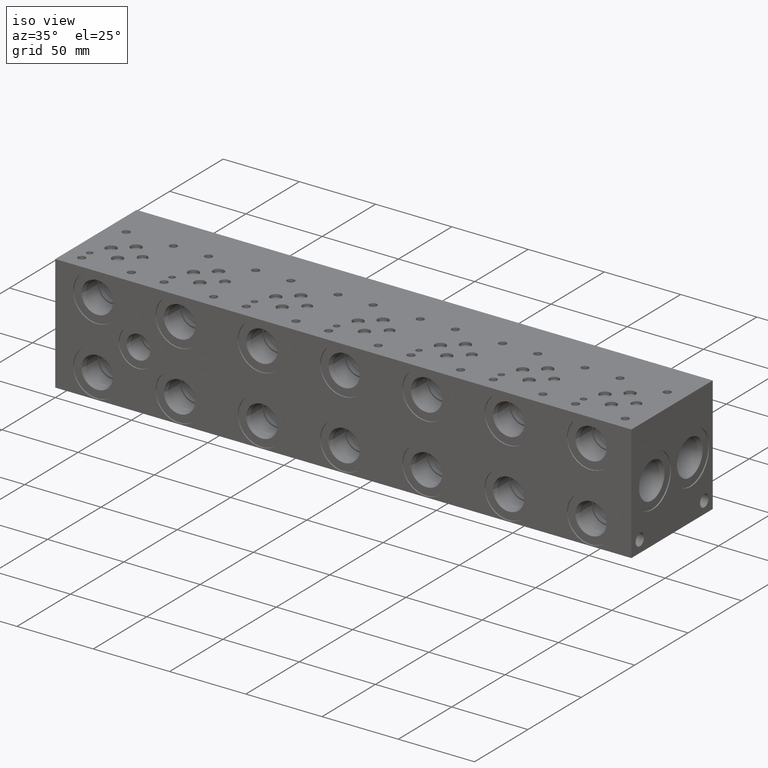
[diagram: clean part render]
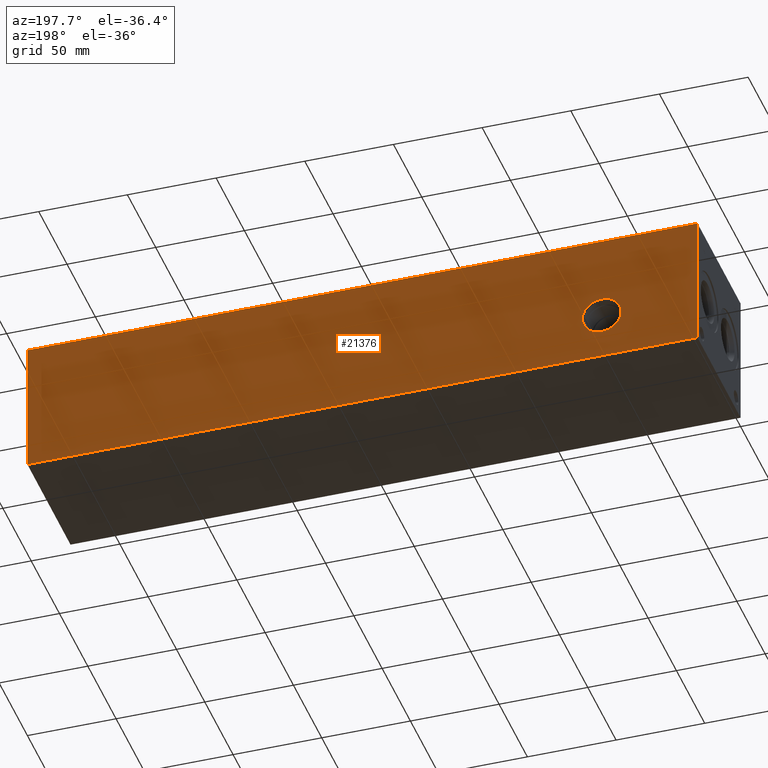
[diagram: tour spotlight — one face highlighted and labeled with its STEP entity id]
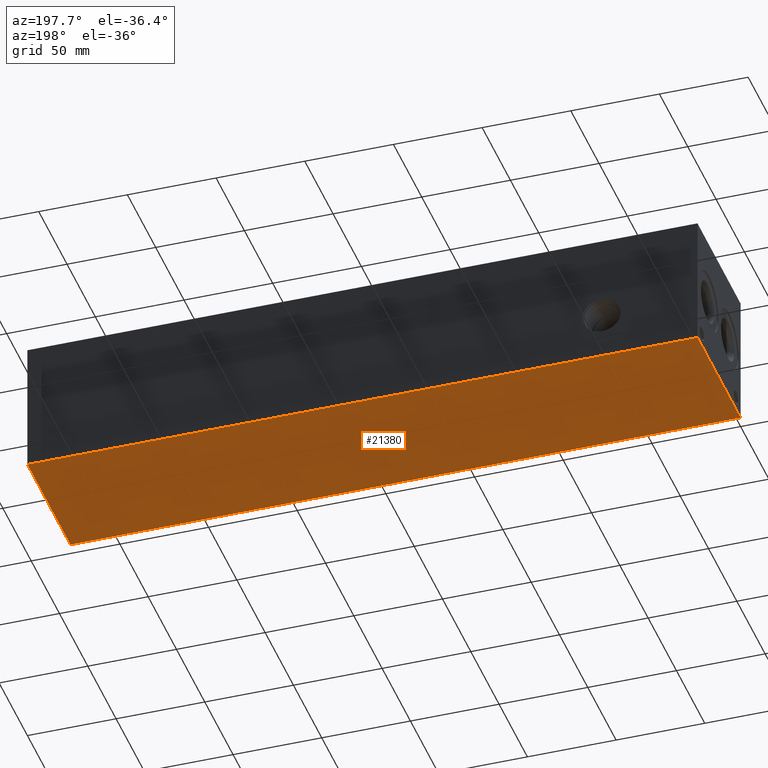
[diagram: tour spotlight — one face highlighted and labeled with its STEP entity id]
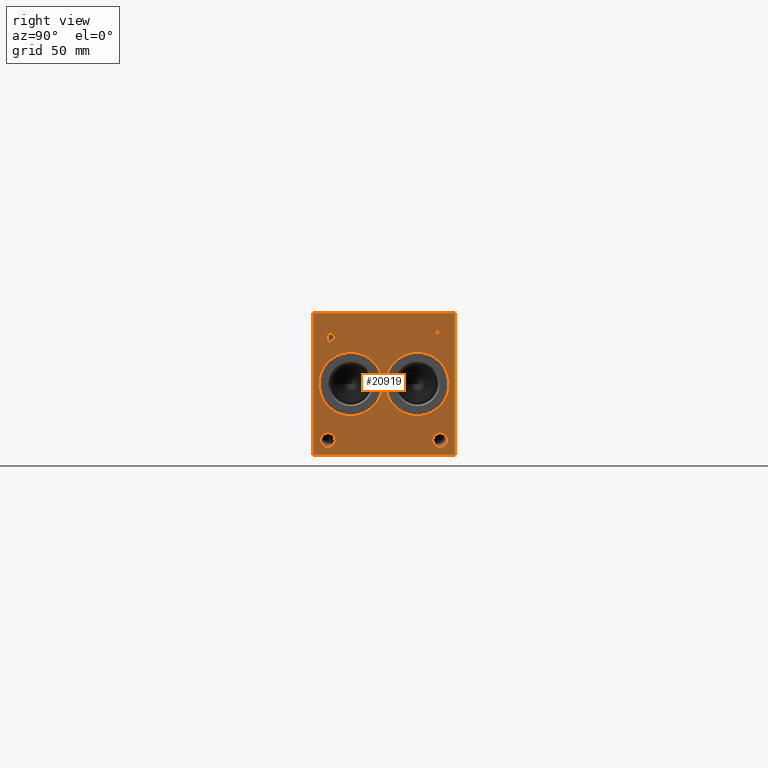
[diagram: tour spotlight — one face highlighted and labeled with its STEP entity id]
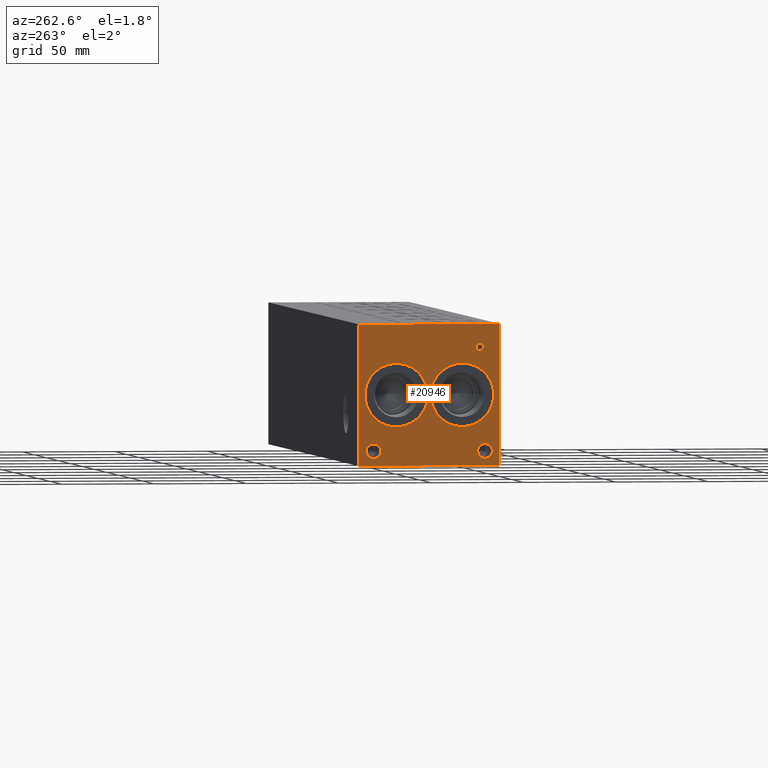
[diagram: tour spotlight — one face highlighted and labeled with its STEP entity id]
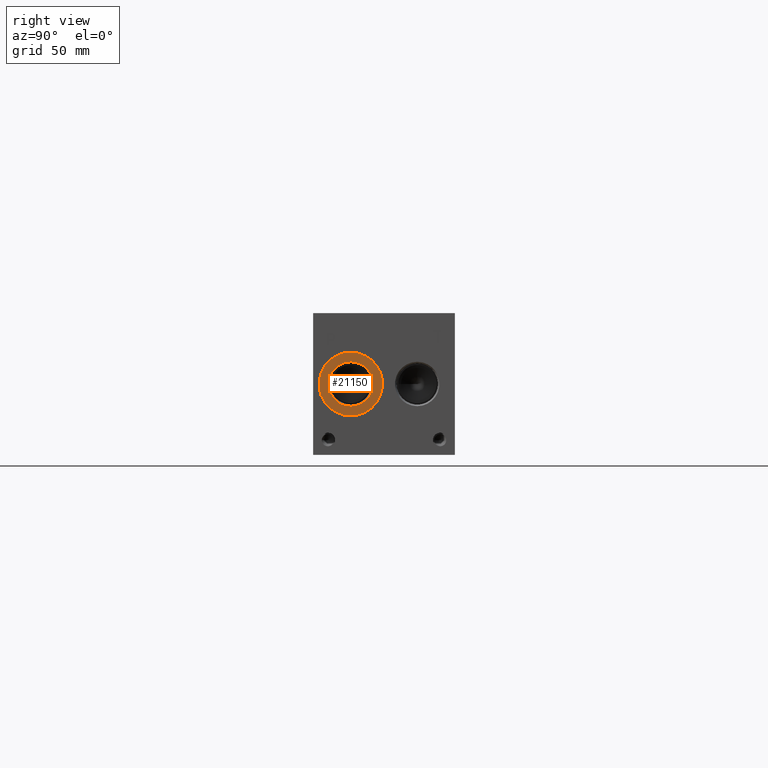
[diagram: tour spotlight — one face highlighted and labeled with its STEP entity id]
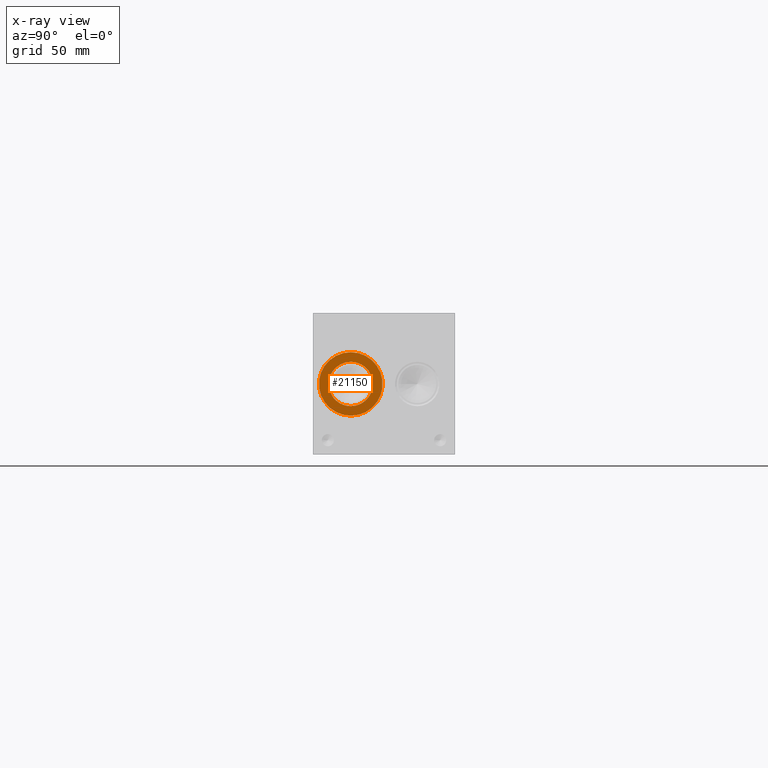
[diagram: x-ray of the same camera — body ghosted, this tour face saturated]
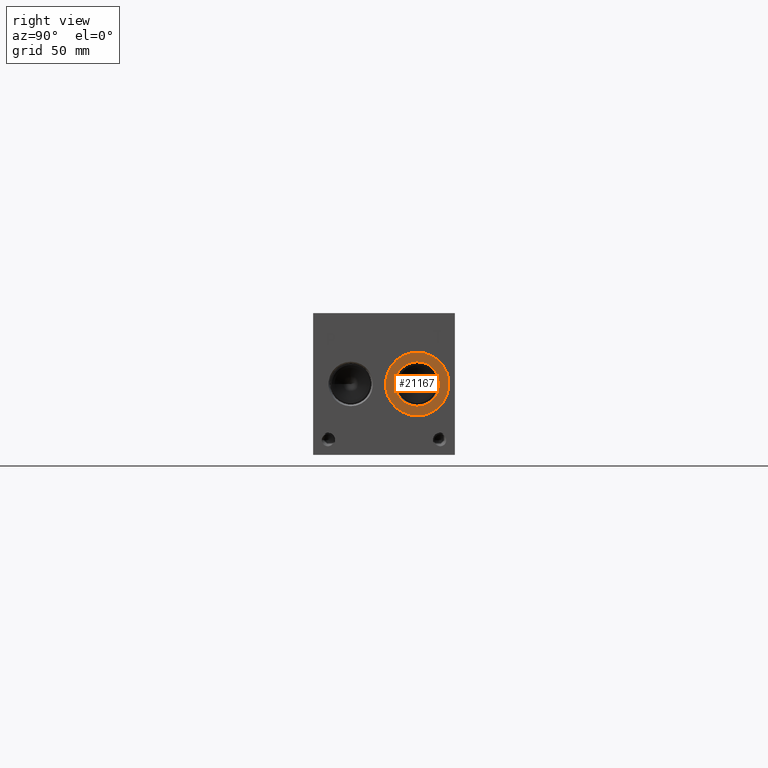
[diagram: tour spotlight — one face highlighted and labeled with its STEP entity id]
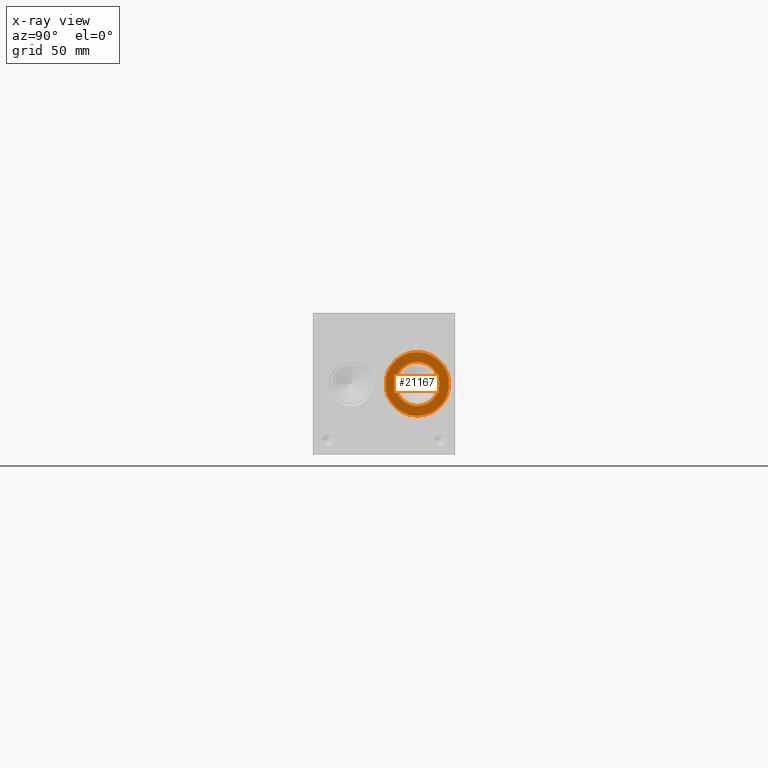
[diagram: x-ray of the same camera — body ghosted, this tour face saturated]
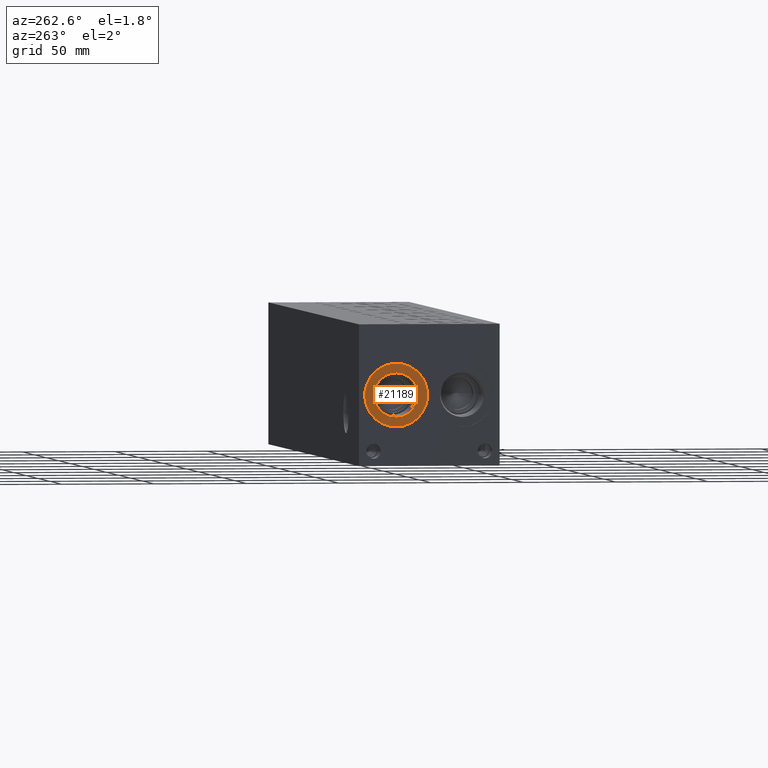
[diagram: tour spotlight — one face highlighted and labeled with its STEP entity id]
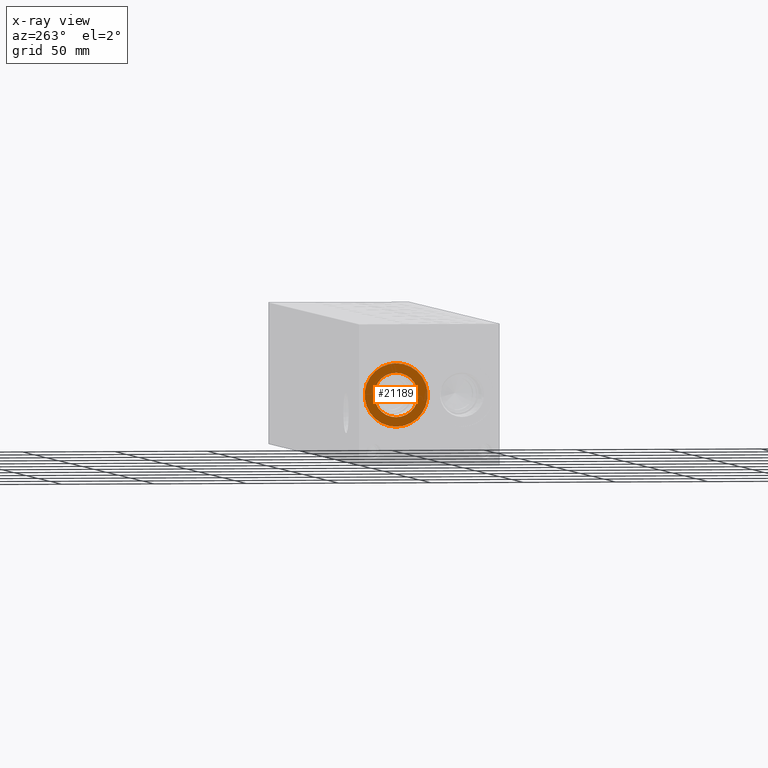
[diagram: x-ray of the same camera — body ghosted, this tour face saturated]
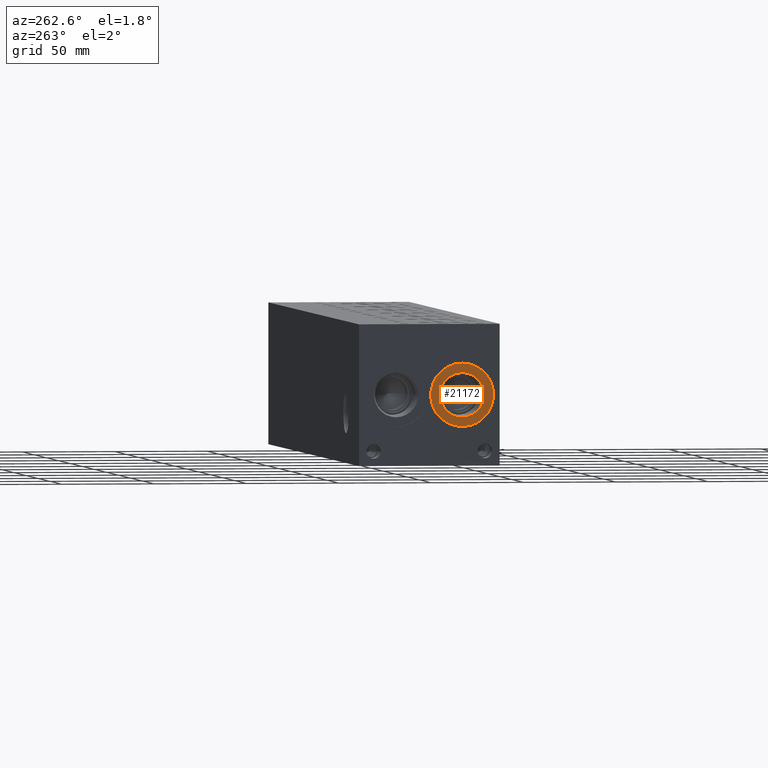
[diagram: tour spotlight — one face highlighted and labeled with its STEP entity id]
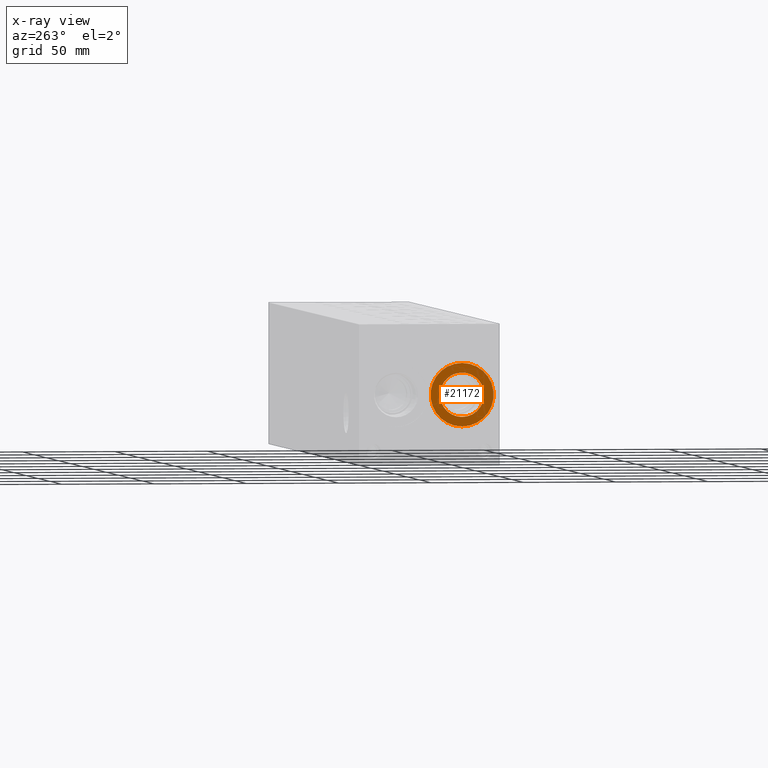
[diagram: x-ray of the same camera — body ghosted, this tour face saturated]
A machine part: a face-by-face anatomy tour. The part has 1119 B-rep faces; the first image is the clean iso view, then the 8 largest visible faces are spotlighted one at a time (largest first), each with its STEP entity span.

Face 1 — auxiliary view, entity #21376. In plain terms, the highlighted planar face has unit normal (0, 1, 0).
Definition (entity closure, byte-faithful):
#440=CIRCLE('',#21954,10.9093);
#441=CIRCLE('',#21955,10.9093);
#1280=FACE_BOUND('',#4280,.T.);
#1874=PLANE('',#23024);
#2993=FACE_OUTER_BOUND('',#4279,.T.);
#4279=EDGE_LOOP('',(#19210,#19211,#19212,#19213));
#4280=EDGE_LOOP('',(#19214,#19215));
#5666=LINE('',#34725,#7417);
#5726=LINE('',#34998,#7477);
#6097=LINE('',#37332,#7848);
#6098=LINE('',#37333,#7849);
#7417=VECTOR('',#25265,10.);
#7477=VECTOR('',#25379,10.);
#7848=VECTOR('',#28040,10.);
#7849=VECTOR('',#28041,10.);
#9542=VERTEX_POINT('',#34722);
#9543=VERTEX_POINT('',#34724);
#9600=VERTEX_POINT('',#34994);
#9601=VERTEX_POINT('',#34996);
#9662=VERTEX_POINT('',#35175);
#9663=VERTEX_POINT('',#35176);
#12228=EDGE_CURVE('',#9542,#9543,#5666,.T.);
#12312=EDGE_CURVE('',#9600,#9601,#5726,.T.);
#12397=EDGE_CURVE('',#9662,#9663,#440,.T.);
#12398=EDGE_CURVE('',#9663,#9662,#441,.T.);
#13398=EDGE_CURVE('',#9542,#9600,#6097,.T.);
#13399=EDGE_CURVE('',#9543,#9601,#6098,.T.);
#19210=ORIENTED_EDGE('',*,*,#13398,.T.);
#19211=ORIENTED_EDGE('',*,*,#12312,.T.);
#19212=ORIENTED_EDGE('',*,*,#13399,.F.);
#19213=ORIENTED_EDGE('',*,*,#12228,.F.);
#19214=ORIENTED_EDGE('',*,*,#12397,.T.);
#19215=ORIENTED_EDGE('',*,*,#12398,.T.);
#21376=ADVANCED_FACE('',(#2993,#1280),#1874,.T.);
#21954=AXIS2_PLACEMENT_3D('',#35177,#25570,#25571);
#21955=AXIS2_PLACEMENT_3D('',#35178,#25572,#25573);
#23024=AXIS2_PLACEMENT_3D('',#37331,#28038,#28039);
#25265=DIRECTION('',(0.,0.,1.));
#25379=DIRECTION('',(0.,0.,1.));
#25570=DIRECTION('center_axis',(0.,-1.,0.));
#25571=DIRECTION('ref_axis',(1.,0.,0.));
#25572=DIRECTION('center_axis',(0.,-1.,0.));
#25573=DIRECTION('ref_axis',(1.,0.,0.));
#28038=DIRECTION('center_axis',(0.,1.,0.));
#28039=DIRECTION('ref_axis',(-1.,0.,0.));
#28040=DIRECTION('',(-1.,0.,0.));
#28041=DIRECTION('',(-1.,0.,0.));
#34722=CARTESIAN_POINT('',(377.825,76.2,0.));
#34724=CARTESIAN_POINT('',(377.825,76.2,76.2));
#34725=CARTESIAN_POINT('',(377.825,76.2,0.));
#34994=CARTESIAN_POINT('',(0.,76.2,0.));
#34996=CARTESIAN_POINT('',(0.,76.2,76.2));
#34998=CARTESIAN_POINT('',(0.,76.2,0.));
#35175=CARTESIAN_POINT('',(64.8843,76.2,26.9748));
#35176=CARTESIAN_POINT('',(43.0657,76.2,26.9748));
#35177=CARTESIAN_POINT('Origin',(53.975,76.2,26.9748));
#35178=CARTESIAN_POINT('Origin',(53.975,76.2,26.9748));
#37331=CARTESIAN_POINT('Origin',(377.825,76.2,0.));
#37332=CARTESIAN_POINT('',(377.825,76.2,0.));
#37333=CARTESIAN_POINT('',(377.825,76.2,76.2));

Face 2 — auxiliary view, entity #21380. In plain terms, the highlighted planar face has unit normal (0, 0, 1).
Definition (entity closure, byte-faithful):
#1878=PLANE('',#23028);
#2997=FACE_OUTER_BOUND('',#4347,.T.);
#4347=EDGE_LOOP('',(#19356,#19357,#19358,#19359));
#4392=LINE('',#28381,#6143);
#5665=LINE('',#34723,#7416);
#5724=LINE('',#34995,#7475);
#6097=LINE('',#37332,#7848);
#6143=VECTOR('',#23099,10.);
#7416=VECTOR('',#25264,10.);
#7475=VECTOR('',#25377,10.);
#7848=VECTOR('',#28040,10.);
#8374=VERTEX_POINT('',#28379);
#8375=VERTEX_POINT('',#28380);
#9542=VERTEX_POINT('',#34722);
#9600=VERTEX_POINT('',#34994);
#10492=EDGE_CURVE('',#8374,#8375,#4392,.T.);
#12227=EDGE_CURVE('',#8375,#9542,#5665,.T.);
#12310=EDGE_CURVE('',#9600,#8374,#5724,.T.);
#13398=EDGE_CURVE('',#9542,#9600,#6097,.T.);
#19356=ORIENTED_EDGE('',*,*,#10492,.F.);
#19357=ORIENTED_EDGE('',*,*,#12310,.F.);
#19358=ORIENTED_EDGE('',*,*,#13398,.F.);
#19359=ORIENTED_EDGE('',*,*,#12227,.F.);
#21380=ADVANCED_FACE('',(#2997),#1878,.F.);
#23028=AXIS2_PLACEMENT_3D('',#37337,#28048,#28049);
#23099=DIRECTION('',(1.,0.,0.));
#25264=DIRECTION('',(0.,1.,0.));
#25377=DIRECTION('',(0.,-1.,0.));
#28040=DIRECTION('',(-1.,0.,0.));
#28048=DIRECTION('center_axis',(0.,0.,1.));
#28049=DIRECTION('ref_axis',(1.,0.,0.));
#28379=CARTESIAN_POINT('',(0.,0.,0.));
#28380=CARTESIAN_POINT('',(377.825,0.,0.));
#28381=CARTESIAN_POINT('',(0.,0.,0.));
#34722=CARTESIAN_POINT('',(377.825,76.2,0.));
#34723=CARTESIAN_POINT('',(377.825,0.,0.));
#34994=CARTESIAN_POINT('',(0.,76.2,0.));
#34995=CARTESIAN_POINT('',(0.,76.2,0.));
#37332=CARTESIAN_POINT('',(377.825,76.2,0.));
#37337=CARTESIAN_POINT('Origin',(188.9125,38.1,0.));

Face 3 — right view, entity #20919. In plain terms, the highlighted planar face has unit normal (1, 0, 0).
Definition (entity closure, byte-faithful):
#390=CIRCLE('',#21853,17.0688);
#391=CIRCLE('',#21854,17.0688);
#392=CIRCLE('',#21855,17.0688);
#393=CIRCLE('',#21856,17.0688);
#394=CIRCLE('',#21857,3.9624);
#395=CIRCLE('',#21858,3.9624);
#396=CIRCLE('',#21859,3.9624);
#397=CIRCLE('',#21860,3.9624);
#1194=FACE_BOUND('',#3737,.T.);
#1195=FACE_BOUND('',#3738,.T.);
#1196=FACE_BOUND('',#3739,.T.);
#1197=FACE_BOUND('',#3740,.T.);
#1198=FACE_BOUND('',#3741,.T.);
#1199=FACE_BOUND('',#3742,.T.);
#1771=PLANE('',#21852);
#2536=FACE_OUTER_BOUND('',#3736,.T.);
#3736=EDGE_LOOP('',(#16961,#16962,#16963,#16964));
#3737=EDGE_LOOP('',(#16965,#16966));
#3738=EDGE_LOOP('',(#16967,#16968));
#3739=EDGE_LOOP('',(#16969,#16970));
#3740=EDGE_LOOP('',(#16971,#16972));
#3741=EDGE_LOOP('',(#16973,#16974,#16975,#16976,#16977,#16978,#16979,#16980));
#3742=EDGE_LOOP('',(#16981,#16982,#16983,#16984,#16985,#16986,#16987,#16988,
#16989));
#4393=LINE('',#28383,#6144);
#5649=LINE('',#34657,#7400);
#5652=LINE('',#34663,#7403);
#5655=LINE('',#34669,#7406);
#5658=LINE('',#34675,#7409);
#5661=LINE('',#34681,#7412);
#5665=LINE('',#34723,#7416);
#5666=LINE('',#34725,#7417);
#5667=LINE('',#34726,#7418);
#5668=LINE('',#34745,#7419);
#5669=LINE('',#34747,#7420);
#5670=LINE('',#34749,#7421);
#5671=LINE('',#34751,#7422);
#5672=LINE('',#34753,#7423);
#5673=LINE('',#34755,#7424);
#5674=LINE('',#34757,#7425);
#5675=LINE('',#34758,#7426);
#6144=VECTOR('',#23100,10.);
#7400=VECTOR('',#25236,10.);
#7403=VECTOR('',#25241,10.);
#7406=VECTOR('',#25246,10.);
#7409=VECTOR('',#25251,10.);
#7412=VECTOR('',#25256,10.);
#7416=VECTOR('',#25264,10.);
#7417=VECTOR('',#25265,10.);
#7418=VECTOR('',#25266,10.);
#7419=VECTOR('',#25283,10.);
#7420=VECTOR('',#25284,10.);
#7421=VECTOR('',#25285,10.);
#7422=VECTOR('',#25286,10.);
#7423=VECTOR('',#25287,10.);
#7424=VECTOR('',#25288,10.);
#7425=VECTOR('',#25289,10.);
#7426=VECTOR('',#25290,10.);
#8302=B_SPLINE_CURVE_WITH_KNOTS('',2,(#34624,#34625,#34626,#34627),
 .UNSPECIFIED.,.F.,.F.,(3,1,3),(0.,1.,2.),.UNSPECIFIED.);
#8304=B_SPLINE_CURVE_WITH_KNOTS('',2,(#34645,#34646,#34647,#34648),
 .UNSPECIFIED.,.F.,.F.,(3,1,3),(0.,1.,2.),.UNSPECIFIED.);
#8306=B_SPLINE_CURVE_WITH_KNOTS('',2,(#34694,#34695,#34696,#34697),
 .UNSPECIFIED.,.F.,.F.,(3,1,3),(0.,1.,2.),.UNSPECIFIED.);
#8308=B_SPLINE_CURVE_WITH_KNOTS('',2,(#34712,#34713,#34714,#34715),
 .UNSPECIFIED.,.F.,.F.,(3,1,3),(0.,1.,2.),.UNSPECIFIED.);
#8375=VERTEX_POINT('',#28380);
#8376=VERTEX_POINT('',#28382);
#9524=VERTEX_POINT('',#34622);
#9525=VERTEX_POINT('',#34623);
#9528=VERTEX_POINT('',#34644);
#9530=VERTEX_POINT('',#34656);
#9532=VERTEX_POINT('',#34662);
#9534=VERTEX_POINT('',#34668);
#9536=VERTEX_POINT('',#34674);
#9538=VERTEX_POINT('',#34680);
#9540=VERTEX_POINT('',#34693);
#9542=VERTEX_POINT('',#34722);
#9543=VERTEX_POINT('',#34724);
#9544=VERTEX_POINT('',#34727);
#9545=VERTEX_POINT('',#34728);
#9546=VERTEX_POINT('',#34731);
#9547=VERTEX_POINT('',#34732);
#9548=VERTEX_POINT('',#34735);
#9549=VERTEX_POINT('',#34736);
#9550=VERTEX_POINT('',#34739);
#9551=VERTEX_POINT('',#34740);
#9552=VERTEX_POINT('',#34743);
#9553=VERTEX_POINT('',#34744);
#9554=VERTEX_POINT('',#34746);
#9555=VERTEX_POINT('',#34748);
#9556=VERTEX_POINT('',#34750);
#9557=VERTEX_POINT('',#34752);
#9558=VERTEX_POINT('',#34754);
#9559=VERTEX_POINT('',#34756);
#10493=EDGE_CURVE('',#8375,#8376,#4393,.T.);
#12200=EDGE_CURVE('',#9524,#9525,#8302,.T.);
#12204=EDGE_CURVE('',#9528,#9524,#8304,.T.);
#12207=EDGE_CURVE('',#9530,#9528,#5649,.T.);
#12210=EDGE_CURVE('',#9532,#9530,#5652,.T.);
#12213=EDGE_CURVE('',#9534,#9532,#5655,.T.);
#12216=EDGE_CURVE('',#9536,#9534,#5658,.T.);
#12219=EDGE_CURVE('',#9538,#9536,#5661,.T.);
#12222=EDGE_CURVE('',#9540,#9538,#8306,.T.);
#12225=EDGE_CURVE('',#9525,#9540,#8308,.T.);
#12227=EDGE_CURVE('',#8375,#9542,#5665,.T.);
#12228=EDGE_CURVE('',#9542,#9543,#5666,.T.);
#12229=EDGE_CURVE('',#8376,#9543,#5667,.T.);
#12230=EDGE_CURVE('',#9544,#9545,#390,.T.);
#12231=EDGE_CURVE('',#9545,#9544,#391,.T.);
#12232=EDGE_CURVE('',#9546,#9547,#392,.T.);
#12233=EDGE_CURVE('',#9547,#9546,#393,.T.);
#12234=EDGE_CURVE('',#9548,#9549,#394,.T.);
#12235=EDGE_CURVE('',#9549,#9548,#395,.T.);
#12236=EDGE_CURVE('',#9550,#9551,#396,.T.);
#12237=EDGE_CURVE('',#9551,#9550,#397,.T.);
#12238=EDGE_CURVE('',#9552,#9553,#5668,.T.);
#12239=EDGE_CURVE('',#9553,#9554,#5669,.T.);
#12240=EDGE_CURVE('',#9554,#9555,#5670,.T.);
#12241=EDGE_CURVE('',#9555,#9556,#5671,.T.);
#12242=EDGE_CURVE('',#9556,#9557,#5672,.T.);
#12243=EDGE_CURVE('',#9557,#9558,#5673,.T.);
#12244=EDGE_CURVE('',#9558,#9559,#5674,.T.);
#12245=EDGE_CURVE('',#9559,#9552,#5675,.T.);
#16961=ORIENTED_EDGE('',*,*,#12227,.T.);
#16962=ORIENTED_EDGE('',*,*,#12228,.T.);
#16963=ORIENTED_EDGE('',*,*,#12229,.F.);
#16964=ORIENTED_EDGE('',*,*,#10493,.F.);
#16965=ORIENTED_EDGE('',*,*,#12230,.T.);
#16966=ORIENTED_EDGE('',*,*,#12231,.T.);
#16967=ORIENTED_EDGE('',*,*,#12232,.T.);
#16968=ORIENTED_EDGE('',*,*,#12233,.T.);
#16969=ORIENTED_EDGE('',*,*,#12234,.T.);
#16970=ORIENTED_EDGE('',*,*,#12235,.T.);
#16971=ORIENTED_EDGE('',*,*,#12236,.T.);
#16972=ORIENTED_EDGE('',*,*,#12237,.T.);
#16973=ORIENTED_EDGE('',*,*,#12238,.T.);
#16974=ORIENTED_EDGE('',*,*,#12239,.T.);
#16975=ORIENTED_EDGE('',*,*,#12240,.T.);
#16976=ORIENTED_EDGE('',*,*,#12241,.T.);
#16977=ORIENTED_EDGE('',*,*,#12242,.T.);
#16978=ORIENTED_EDGE('',*,*,#12243,.T.);
#16979=ORIENTED_EDGE('',*,*,#12244,.T.);
#16980=ORIENTED_EDGE('',*,*,#12245,.T.);
#16981=ORIENTED_EDGE('',*,*,#12200,.T.);
#16982=ORIENTED_EDGE('',*,*,#12225,.T.);
#16983=ORIENTED_EDGE('',*,*,#12222,.T.);
#16984=ORIENTED_EDGE('',*,*,#12219,.T.);
#16985=ORIENTED_EDGE('',*,*,#12216,.T.);
#16986=ORIENTED_EDGE('',*,*,#12213,.T.);
#16987=ORIENTED_EDGE('',*,*,#12210,.T.);
#16988=ORIENTED_EDGE('',*,*,#12207,.T.);
#16989=ORIENTED_EDGE('',*,*,#12204,.T.);
#20919=ADVANCED_FACE('',(#2536,#1194,#1195,#1196,#1197,#1198,#1199),#1771,
 .T.);
#21852=AXIS2_PLACEMENT_3D('',#34721,#25262,#25263);
#21853=AXIS2_PLACEMENT_3D('',#34729,#25267,#25268);
#21854=AXIS2_PLACEMENT_3D('',#34730,#25269,#25270);
#21855=AXIS2_PLACEMENT_3D('',#34733,#25271,#25272);
#21856=AXIS2_PLACEMENT_3D('',#34734,#25273,#25274);
#21857=AXIS2_PLACEMENT_3D('',#34737,#25275,#25276);
#21858=AXIS2_PLACEMENT_3D('',#34738,#25277,#25278);
#21859=AXIS2_PLACEMENT_3D('',#34741,#25279,#25280);
#21860=AXIS2_PLACEMENT_3D('',#34742,#25281,#25282);
#23100=DIRECTION('',(0.,0.,1.));
#25236=DIRECTION('',(0.,1.,0.));
#25241=DIRECTION('',(0.,0.,1.));
#25246=DIRECTION('',(0.,-1.,0.));
#25251=DIRECTION('',(0.,0.,-1.));
#25256=DIRECTION('',(0.,-1.,0.));
#25262=DIRECTION('center_axis',(1.,0.,0.));
#25263=DIRECTION('ref_axis',(0.,1.,0.));
#25264=DIRECTION('',(0.,1.,0.));
#25265=DIRECTION('',(0.,0.,1.));
#25266=DIRECTION('',(0.,1.,0.));
#25267=DIRECTION('center_axis',(-1.,0.,0.));
#25268=DIRECTION('ref_axis',(0.,0.,-1.));
#25269=DIRECTION('center_axis',(-1.,0.,0.));
#25270=DIRECTION('ref_axis',(0.,0.,-1.));
#25271=DIRECTION('center_axis',(-1.,0.,0.));
#25272=DIRECTION('ref_axis',(0.,0.,-1.));
#25273=DIRECTION('center_axis',(-1.,0.,0.));
#25274=DIRECTION('ref_axis',(0.,0.,-1.));
#25275=DIRECTION('center_axis',(-1.,0.,0.));
#25276=DIRECTION('ref_axis',(0.,1.,0.));
#25277=DIRECTION('center_axis',(-1.,0.,0.));
#25278=DIRECTION('ref_axis',(0.,1.,0.));
#25279=DIRECTION('center_axis',(-1.,0.,0.));
#25280=DIRECTION('ref_axis',(0.,1.,0.));
#25281=DIRECTION('center_axis',(-1.,0.,0.));
#25282=DIRECTION('ref_axis',(0.,1.,0.));
#25283=DIRECTION('',(0.,-1.,0.));
#25284=DIRECTION('',(0.,0.,1.));
#25285=DIRECTION('',(0.,-1.,0.));
#25286=DIRECTION('',(0.,0.,1.));
#25287=DIRECTION('',(0.,1.,0.));
#25288=DIRECTION('',(0.,0.,-1.));
#25289=DIRECTION('',(0.,-1.,0.));
#25290=DIRECTION('',(0.,0.,-1.));
#28380=CARTESIAN_POINT('',(377.825,0.,0.));
#28382=CARTESIAN_POINT('',(377.825,0.,76.2));
#28383=CARTESIAN_POINT('',(377.825,0.,0.));
#34622=CARTESIAN_POINT('',(377.825,11.0443172023594,64.6912681439707));
#34623=CARTESIAN_POINT('',(377.825,11.800759654532,63.1732373726039));
#34624=CARTESIAN_POINT('Ctrl Pts',(377.825,11.0443172023594,64.6912681439707));
#34625=CARTESIAN_POINT('Ctrl Pts',(377.825,11.3993820268486,64.4494123939564));
#34626=CARTESIAN_POINT('Ctrl Pts',(377.825,11.800759654532,63.7032616758269));
#34627=CARTESIAN_POINT('Ctrl Pts',(377.825,11.800759654532,63.1732373726039));
#34644=CARTESIAN_POINT('',(377.825,9.3822021543883,65.0874999046326));
#34645=CARTESIAN_POINT('Ctrl Pts',(377.825,9.3822021543883,65.0874999046326));
#34646=CARTESIAN_POINT('Ctrl Pts',(377.825,9.94824752676236,65.0874999046326));
#34647=CARTESIAN_POINT('Ctrl Pts',(377.825,10.740711048086,64.9022486918556));
#34648=CARTESIAN_POINT('Ctrl Pts',(377.825,11.0443172023594,64.6912681439707));
#34656=CARTESIAN_POINT('',(377.825,7.78698337769779,65.0874999046326));
#34657=CARTESIAN_POINT('',(377.825,3.89349168884889,65.0874999046326));
#34662=CARTESIAN_POINT('',(377.825,7.78698337769779,58.7375));
#34663=CARTESIAN_POINT('',(377.825,7.78698337769779,29.36875));
#34668=CARTESIAN_POINT('',(377.825,8.63090556923729,58.7375));
#34669=CARTESIAN_POINT('',(377.825,4.31545278461864,58.7375));
#34674=CARTESIAN_POINT('',(377.825,8.63090556923729,61.1045988299279));
#34675=CARTESIAN_POINT('',(377.825,8.63090556923729,30.5522994149639));
#34680=CARTESIAN_POINT('',(377.825,9.34618108523723,61.1045988299279));
#34681=CARTESIAN_POINT('',(377.825,4.67309054261861,61.1045988299279));
#34693=CARTESIAN_POINT('',(377.825,11.2450060162011,61.7632698086904));
#34694=CARTESIAN_POINT('Ctrl Pts',(377.825,11.2450060162011,61.7632698086904));
#34695=CARTESIAN_POINT('Ctrl Pts',(377.825,10.9156705268198,61.4390801863307));
#34696=CARTESIAN_POINT('Ctrl Pts',(377.825,10.0254355320861,61.1045988299279));
#34697=CARTESIAN_POINT('Ctrl Pts',(377.825,9.34618108523723,61.1045988299279));
#34712=CARTESIAN_POINT('Ctrl Pts',(377.825,11.800759654532,63.1732373726039));
#34713=CARTESIAN_POINT('Ctrl Pts',(377.825,11.800759654532,62.7615680108774));
#34714=CARTESIAN_POINT('Ctrl Pts',(377.825,11.5074452343018,62.0205631597695));
#34715=CARTESIAN_POINT('Ctrl Pts',(377.825,11.2450060162011,61.7632698086904));
#34721=CARTESIAN_POINT('Origin',(377.825,0.,0.));
#34722=CARTESIAN_POINT('',(377.825,76.2,0.));
#34723=CARTESIAN_POINT('',(377.825,0.,0.));
#34724=CARTESIAN_POINT('',(377.825,76.2,76.2));
#34725=CARTESIAN_POINT('',(377.825,76.2,0.));
#34726=CARTESIAN_POINT('',(377.825,0.,76.2));
#34727=CARTESIAN_POINT('',(377.825,55.9562,21.0312));
#34728=CARTESIAN_POINT('',(377.825,55.9562,55.1688));
#34729=CARTESIAN_POINT('Origin',(377.825,55.9562,38.1));
#34730=CARTESIAN_POINT('Origin',(377.825,55.9562,38.1));
#34731=CARTESIAN_POINT('',(377.825,20.2438,21.0312));
#34732=CARTESIAN_POINT('',(377.825,20.2438,55.1688));
#34733=CARTESIAN_POINT('Origin',(377.825,20.2438,38.1));
#34734=CARTESIAN_POINT('Origin',(377.825,20.2438,38.1));
#34735=CARTESIAN_POINT('',(377.825,11.8872,7.9248));
#34736=CARTESIAN_POINT('',(377.825,3.9624,7.9248));
#34737=CARTESIAN_POINT('Origin',(377.825,7.9248,7.9248));
#34738=CARTESIAN_POINT('Origin',(377.825,7.9248,7.9248));
#34739=CARTESIAN_POINT('',(377.825,72.2376,7.9248));
#34740=CARTESIAN_POINT('',(377.825,64.3128,7.9248));
#34741=CARTESIAN_POINT('Origin',(377.825,68.2752,7.9248));
#34742=CARTESIAN_POINT('Origin',(377.825,68.2752,7.9248));
#34743=CARTESIAN_POINT('',(377.825,67.262915271453,60.325));
#34744=CARTESIAN_POINT('',(377.825,66.4189930799135,60.325));
#34745=CARTESIAN_POINT('',(377.825,33.6314576357265,60.325));
#34746=CARTESIAN_POINT('',(377.825,66.4189930799135,65.9237033194816));
#34747=CARTESIAN_POINT('',(377.825,66.4189930799135,30.1625));
#34748=CARTESIAN_POINT('',(377.825,64.2886041329784,65.9237033194816));
#34749=CARTESIAN_POINT('',(377.825,33.2094965399567,65.9237033194816));
#34750=CARTESIAN_POINT('',(377.825,64.2886041329784,66.6749999046326));
#34751=CARTESIAN_POINT('',(377.825,64.2886041329784,32.9618516597408));
#34752=CARTESIAN_POINT('',(377.825,69.3933042183881,66.6749999046326));
#34753=CARTESIAN_POINT('',(377.825,32.1443020664892,66.6749999046326));
#34754=CARTESIAN_POINT('',(377.825,69.3933042183881,65.9237033194816));
#34755=CARTESIAN_POINT('',(377.825,69.3933042183881,33.3374999523163));
#34756=CARTESIAN_POINT('',(377.825,67.262915271453,65.9237033194816));
#34757=CARTESIAN_POINT('',(377.825,34.696652109194,65.9237033194816));
#34758=CARTESIAN_POINT('',(377.825,67.262915271453,32.9618516597408));

Face 4 — auxiliary view, entity #20946. In plain terms, the highlighted planar face has unit normal (-1, 0, 0).
Definition (entity closure, byte-faithful):
#398=CIRCLE('',#21880,17.0688);
#399=CIRCLE('',#21881,17.0688);
#400=CIRCLE('',#21882,17.0688);
#401=CIRCLE('',#21883,17.0688);
#402=CIRCLE('',#21884,3.9624);
#403=CIRCLE('',#21885,3.9624);
#404=CIRCLE('',#21886,3.9624);
#405=CIRCLE('',#21887,3.9624);
#1201=FACE_BOUND('',#3771,.T.);
#1202=FACE_BOUND('',#3772,.T.);
#1203=FACE_BOUND('',#3773,.T.);
#1204=FACE_BOUND('',#3774,.T.);
#1205=FACE_BOUND('',#3775,.T.);
#1206=FACE_BOUND('',#3776,.T.);
#1790=PLANE('',#21879);
#2563=FACE_OUTER_BOUND('',#3770,.T.);
#3770=EDGE_LOOP('',(#17110,#17111,#17112,#17113));
#3771=EDGE_LOOP('',(#17114,#17115));
#3772=EDGE_LOOP('',(#17116,#17117));
#3773=EDGE_LOOP('',(#17118,#17119));
#3774=EDGE_LOOP('',(#17120,#17121));
#3775=EDGE_LOOP('',(#17122,#17123,#17124,#17125,#17126,#17127,#17128,#17129));
#3776=EDGE_LOOP('',(#17130,#17131,#17132,#17133,#17134,#17135,#17136,#17137,
#17138));
#4395=LINE('',#28386,#6146);
#5708=LINE('',#34929,#7459);
#5711=LINE('',#34935,#7462);
#5714=LINE('',#34941,#7465);
#5717=LINE('',#34947,#7468);
#5720=LINE('',#34953,#7471);
#5724=LINE('',#34995,#7475);
#5725=LINE('',#34997,#7476);
#5726=LINE('',#34998,#7477);
#5727=LINE('',#35017,#7478);
#5728=LINE('',#35019,#7479);
#5729=LINE('',#35021,#7480);
#5730=LINE('',#35023,#7481);
#5731=LINE('',#35025,#7482);
#5732=LINE('',#35027,#7483);
#5733=LINE('',#35029,#7484);
#5734=LINE('',#35030,#7485);
#6146=VECTOR('',#23102,10.);
#7459=VECTOR('',#25349,10.);
#7462=VECTOR('',#25354,10.);
#7465=VECTOR('',#25359,10.);
#7468=VECTOR('',#25364,10.);
#7471=VECTOR('',#25369,10.);
#7475=VECTOR('',#25377,10.);
#7476=VECTOR('',#25378,10.);
#7477=VECTOR('',#25379,10.);
#7478=VECTOR('',#25396,10.);
#7479=VECTOR('',#25397,10.);
#7480=VECTOR('',#25398,10.);
#7481=VECTOR('',#25399,10.);
#7482=VECTOR('',#25400,10.);
#7483=VECTOR('',#25401,10.);
#7484=VECTOR('',#25402,10.);
#7485=VECTOR('',#25403,10.);
#8318=B_SPLINE_CURVE_WITH_KNOTS('',2,(#34896,#34897,#34898,#34899),
 .UNSPECIFIED.,.F.,.F.,(3,1,3),(0.,1.,2.),.UNSPECIFIED.);
#8320=B_SPLINE_CURVE_WITH_KNOTS('',2,(#34917,#34918,#34919,#34920),
 .UNSPECIFIED.,.F.,.F.,(3,1,3),(0.,1.,2.),.UNSPECIFIED.);
#8322=B_SPLINE_CURVE_WITH_KNOTS('',2,(#34966,#34967,#34968,#34969),
 .UNSPECIFIED.,.F.,.F.,(3,1,3),(0.,1.,2.),.UNSPECIFIED.);
#8324=B_SPLINE_CURVE_WITH_KNOTS('',2,(#34984,#34985,#34986,#34987),
 .UNSPECIFIED.,.F.,.F.,(3,1,3),(0.,1.,2.),.UNSPECIFIED.);
#8374=VERTEX_POINT('',#28379);
#8377=VERTEX_POINT('',#28384);
#9582=VERTEX_POINT('',#34894);
#9583=VERTEX_POINT('',#34895);
#9586=VERTEX_POINT('',#34916);
#9588=VERTEX_POINT('',#34928);
#9590=VERTEX_POINT('',#34934);
#9592=VERTEX_POINT('',#34940);
#9594=VERTEX_POINT('',#34946);
#9596=VERTEX_POINT('',#34952);
#9598=VERTEX_POINT('',#34965);
#9600=VERTEX_POINT('',#34994);
#9601=VERTEX_POINT('',#34996);
#9602=VERTEX_POINT('',#34999);
#9603=VERTEX_POINT('',#35000);
#9604=VERTEX_POINT('',#35003);
#9605=VERTEX_POINT('',#35004);
#9606=VERTEX_POINT('',#35007);
#9607=VERTEX_POINT('',#35008);
#9608=VERTEX_POINT('',#35011);
#9609=VERTEX_POINT('',#35012);
#9610=VERTEX_POINT('',#35015);
#9611=VERTEX_POINT('',#35016);
#9612=VERTEX_POINT('',#35018);
#9613=VERTEX_POINT('',#35020);
#9614=VERTEX_POINT('',#35022);
#9615=VERTEX_POINT('',#35024);
#9616=VERTEX_POINT('',#35026);
#9617=VERTEX_POINT('',#35028);
#10495=EDGE_CURVE('',#8374,#8377,#4395,.T.);
#12283=EDGE_CURVE('',#9582,#9583,#8318,.T.);
#12287=EDGE_CURVE('',#9586,#9582,#8320,.T.);
#12290=EDGE_CURVE('',#9588,#9586,#5708,.T.);
#12293=EDGE_CURVE('',#9590,#9588,#5711,.T.);
#12296=EDGE_CURVE('',#9592,#9590,#5714,.T.);
#12299=EDGE_CURVE('',#9594,#9592,#5717,.T.);
#12302=EDGE_CURVE('',#9596,#9594,#5720,.T.);
#12305=EDGE_CURVE('',#9598,#9596,#8322,.T.);
#12308=EDGE_CURVE('',#9583,#9598,#8324,.T.);
#12310=EDGE_CURVE('',#9600,#8374,#5724,.T.);
#12311=EDGE_CURVE('',#9601,#8377,#5725,.T.);
#12312=EDGE_CURVE('',#9600,#9601,#5726,.T.);
#12313=EDGE_CURVE('',#9602,#9603,#398,.T.);
#12314=EDGE_CURVE('',#9603,#9602,#399,.T.);
#12315=EDGE_CURVE('',#9604,#9605,#400,.T.);
#12316=EDGE_CURVE('',#9605,#9604,#401,.T.);
#12317=EDGE_CURVE('',#9606,#9607,#402,.T.);
#12318=EDGE_CURVE('',#9607,#9606,#403,.T.);
#12319=EDGE_CURVE('',#9608,#9609,#404,.T.);
#12320=EDGE_CURVE('',#9609,#9608,#405,.T.);
#12321=EDGE_CURVE('',#9610,#9611,#5727,.T.);
#12322=EDGE_CURVE('',#9611,#9612,#5728,.T.);
#12323=EDGE_CURVE('',#9612,#9613,#5729,.T.);
#12324=EDGE_CURVE('',#9613,#9614,#5730,.T.);
#12325=EDGE_CURVE('',#9614,#9615,#5731,.T.);
#12326=EDGE_CURVE('',#9615,#9616,#5732,.T.);
#12327=EDGE_CURVE('',#9616,#9617,#5733,.T.);
#12328=EDGE_CURVE('',#9617,#9610,#5734,.T.);
#17110=ORIENTED_EDGE('',*,*,#12310,.T.);
#17111=ORIENTED_EDGE('',*,*,#10495,.T.);
#17112=ORIENTED_EDGE('',*,*,#12311,.F.);
#17113=ORIENTED_EDGE('',*,*,#12312,.F.);
#17114=ORIENTED_EDGE('',*,*,#12313,.T.);
#17115=ORIENTED_EDGE('',*,*,#12314,.T.);
#17116=ORIENTED_EDGE('',*,*,#12315,.T.);
#17117=ORIENTED_EDGE('',*,*,#12316,.T.);
#17118=ORIENTED_EDGE('',*,*,#12317,.T.);
#17119=ORIENTED_EDGE('',*,*,#12318,.T.);
#17120=ORIENTED_EDGE('',*,*,#12319,.T.);
#17121=ORIENTED_EDGE('',*,*,#12320,.T.);
#17122=ORIENTED_EDGE('',*,*,#12321,.T.);
#17123=ORIENTED_EDGE('',*,*,#12322,.T.);
#17124=ORIENTED_EDGE('',*,*,#12323,.T.);
#17125=ORIENTED_EDGE('',*,*,#12324,.T.);
#17126=ORIENTED_EDGE('',*,*,#12325,.T.);
#17127=ORIENTED_EDGE('',*,*,#12326,.T.);
#17128=ORIENTED_EDGE('',*,*,#12327,.T.);
#17129=ORIENTED_EDGE('',*,*,#12328,.T.);
#17130=ORIENTED_EDGE('',*,*,#12283,.T.);
#17131=ORIENTED_EDGE('',*,*,#12308,.T.);
#17132=ORIENTED_EDGE('',*,*,#12305,.T.);
#17133=ORIENTED_EDGE('',*,*,#12302,.T.);
#17134=ORIENTED_EDGE('',*,*,#12299,.T.);
#17135=ORIENTED_EDGE('',*,*,#12296,.T.);
#17136=ORIENTED_EDGE('',*,*,#12293,.T.);
#17137=ORIENTED_EDGE('',*,*,#12290,.T.);
#17138=ORIENTED_EDGE('',*,*,#12287,.T.);
#20946=ADVANCED_FACE('',(#2563,#1201,#1202,#1203,#1204,#1205,#1206),#1790,
 .T.);
#21879=AXIS2_PLACEMENT_3D('',#34993,#25375,#25376);
#21880=AXIS2_PLACEMENT_3D('',#35001,#25380,#25381);
#21881=AXIS2_PLACEMENT_3D('',#35002,#25382,#25383);
#21882=AXIS2_PLACEMENT_3D('',#35005,#25384,#25385);
#21883=AXIS2_PLACEMENT_3D('',#35006,#25386,#25387);
#21884=AXIS2_PLACEMENT_3D('',#35009,#25388,#25389);
#21885=AXIS2_PLACEMENT_3D('',#35010,#25390,#25391);
#21886=AXIS2_PLACEMENT_3D('',#35013,#25392,#25393);
#21887=AXIS2_PLACEMENT_3D('',#35014,#25394,#25395);
#23102=DIRECTION('',(0.,0.,1.));
#25349=DIRECTION('',(0.,-1.,0.));
#25354=DIRECTION('',(0.,-3.14708893596576E-15,1.));
#25359=DIRECTION('',(0.,1.,0.));
#25364=DIRECTION('',(0.,3.75218139805001E-15,-1.));
#25369=DIRECTION('',(0.,1.,0.));
#25375=DIRECTION('center_axis',(-1.,0.,0.));
#25376=DIRECTION('ref_axis',(0.,-1.,0.));
#25377=DIRECTION('',(0.,-1.,0.));
#25378=DIRECTION('',(0.,-1.,0.));
#25379=DIRECTION('',(0.,0.,1.));
#25380=DIRECTION('center_axis',(1.,0.,0.));
#25381=DIRECTION('ref_axis',(0.,0.,1.));
#25382=DIRECTION('center_axis',(1.,0.,0.));
#25383=DIRECTION('ref_axis',(0.,0.,1.));
#25384=DIRECTION('center_axis',(1.,0.,0.));
#25385=DIRECTION('ref_axis',(0.,0.,1.));
#25386=DIRECTION('center_axis',(1.,0.,0.));
#25387=DIRECTION('ref_axis',(0.,0.,1.));
#25388=DIRECTION('center_axis',(1.,0.,0.));
#25389=DIRECTION('ref_axis',(0.,1.,0.));
#25390=DIRECTION('center_axis',(1.,0.,0.));
#25391=DIRECTION('ref_axis',(0.,1.,0.));
#25392=DIRECTION('center_axis',(1.,0.,0.));
#25393=DIRECTION('ref_axis',(0.,1.,0.));
#25394=DIRECTION('center_axis',(1.,0.,0.));
#25395=DIRECTION('ref_axis',(0.,1.,0.));
#25396=DIRECTION('',(0.,1.,1.05244112384329E-14));
#25397=DIRECTION('',(0.,-3.17280044688052E-15,1.));
#25398=DIRECTION('',(0.,1.,4.16909044227779E-15));
#25399=DIRECTION('',(0.,0.,1.));
#25400=DIRECTION('',(0.,-1.,-3.47984565141735E-15));
#25401=DIRECTION('',(0.,0.,-1.));
#25402=DIRECTION('',(0.,1.,0.));
#25403=DIRECTION('',(0.,3.17280044688052E-15,-1.));
#28379=CARTESIAN_POINT('',(0.,0.,0.));
#28384=CARTESIAN_POINT('',(0.,0.,76.2));
#28386=CARTESIAN_POINT('',(0.,0.,0.));
#34894=CARTESIAN_POINT('',(0.,9.59318279764059,65.4850181439707));
#34895=CARTESIAN_POINT('',(0.,8.83674034546799,63.966987372604));
#34896=CARTESIAN_POINT('Ctrl Pts',(0.,9.59318279764059,65.4850181439707));
#34897=CARTESIAN_POINT('Ctrl Pts',(0.,9.23811797315141,65.2431623939564));
#34898=CARTESIAN_POINT('Ctrl Pts',(0.,8.83674034546799,64.4970116758269));
#34899=CARTESIAN_POINT('Ctrl Pts',(0.,8.83674034546799,63.966987372604));
#34916=CARTESIAN_POINT('',(0.,11.2552978456117,65.8812499046326));
#34917=CARTESIAN_POINT('Ctrl Pts',(0.,11.2552978456117,65.8812499046326));
#34918=CARTESIAN_POINT('Ctrl Pts',(0.,10.6892524732376,65.8812499046326));
#34919=CARTESIAN_POINT('Ctrl Pts',(0.,9.89678895191394,65.6959986918556));
#34920=CARTESIAN_POINT('Ctrl Pts',(0.,9.59318279764059,65.4850181439707));
#34928=CARTESIAN_POINT('',(0.,12.8505166223022,65.8812499046326));
#34929=CARTESIAN_POINT('',(0.,44.5252583111511,65.8812499046326));
#34934=CARTESIAN_POINT('',(0.,12.8505166223022,59.53125));
#34935=CARTESIAN_POINT('',(0.,12.8505166223023,29.7656249999999));
#34940=CARTESIAN_POINT('',(0.,12.0065944307627,59.53125));
#34941=CARTESIAN_POINT('',(0.,44.1032972153814,59.53125));
#34946=CARTESIAN_POINT('',(0.,12.0065944307627,61.8983488299279));
#34947=CARTESIAN_POINT('',(0.,12.0065944307628,30.9491744149638));
#34952=CARTESIAN_POINT('',(0.,11.2913189147628,61.8983488299279));
#34953=CARTESIAN_POINT('',(0.,43.7456594573814,61.8983488299279));
#34965=CARTESIAN_POINT('',(0.,9.39249398379889,62.5570198086904));
#34966=CARTESIAN_POINT('Ctrl Pts',(0.,9.39249398379889,62.5570198086904));
#34967=CARTESIAN_POINT('Ctrl Pts',(0.,9.72182947318016,62.2328301863307));
#34968=CARTESIAN_POINT('Ctrl Pts',(0.,10.6120644679139,61.8983488299279));
#34969=CARTESIAN_POINT('Ctrl Pts',(0.,11.2913189147628,61.8983488299279));
#34984=CARTESIAN_POINT('Ctrl Pts',(0.,8.83674034546799,63.966987372604));
#34985=CARTESIAN_POINT('Ctrl Pts',(0.,8.83674034546799,63.5553180108774));
#34986=CARTESIAN_POINT('Ctrl Pts',(0.,9.13005476569819,62.8143131597695));
#34987=CARTESIAN_POINT('Ctrl Pts',(0.,9.39249398379889,62.5570198086904));
#34993=CARTESIAN_POINT('Origin',(0.,76.2,0.));
#34994=CARTESIAN_POINT('',(0.,76.2,0.));
#34995=CARTESIAN_POINT('',(0.,76.2,0.));
#34996=CARTESIAN_POINT('',(0.,76.2,76.2));
#34997=CARTESIAN_POINT('',(0.,76.2,76.2));
#34998=CARTESIAN_POINT('',(0.,76.2,0.));
#34999=CARTESIAN_POINT('',(0.,55.9562,55.1688));
#35000=CARTESIAN_POINT('',(0.,55.9562,21.0312));
#35001=CARTESIAN_POINT('Origin',(0.,55.9562,38.1));
#35002=CARTESIAN_POINT('Origin',(0.,55.9562,38.1));
#35003=CARTESIAN_POINT('',(0.,20.2438,55.1688));
#35004=CARTESIAN_POINT('',(0.,20.2438,21.0312));
#35005=CARTESIAN_POINT('Origin',(0.,20.2438,38.1));
#35006=CARTESIAN_POINT('Origin',(0.,20.2438,38.1));
#35007=CARTESIAN_POINT('',(0.,72.2376,7.92480000000001));
#35008=CARTESIAN_POINT('',(0.,64.3128,7.92480000000001));
#35009=CARTESIAN_POINT('Origin',(0.,68.2752,7.92480000000001));
#35010=CARTESIAN_POINT('Origin',(0.,68.2752,7.92480000000001));
#35011=CARTESIAN_POINT('',(0.,11.8872,7.92480000000001));
#35012=CARTESIAN_POINT('',(0.,3.9624,7.92480000000001));
#35013=CARTESIAN_POINT('Origin',(0.,7.9248,7.92480000000001));
#35014=CARTESIAN_POINT('Origin',(0.,7.9248,7.92480000000001));
#35015=CARTESIAN_POINT('',(0.,65.293334728547,59.53125));
#35016=CARTESIAN_POINT('',(0.,66.1372569200865,59.53125));
#35017=CARTESIAN_POINT('',(0.,70.7466673642732,59.5312500000001));
#35018=CARTESIAN_POINT('',(0.,66.1372569200865,65.1299533194816));
#35019=CARTESIAN_POINT('',(0.,66.1372569200866,29.765625));
#35020=CARTESIAN_POINT('',(0.,68.2676458670216,65.1299533194816));
#35021=CARTESIAN_POINT('',(0.,71.1686284600431,65.1299533194816));
#35022=CARTESIAN_POINT('',(0.,68.2676458670216,65.8812499046326));
#35023=CARTESIAN_POINT('',(0.,68.2676458670216,32.5649766597408));
#35024=CARTESIAN_POINT('',(0.,63.1629457816119,65.8812499046326));
#35025=CARTESIAN_POINT('',(0.,72.2338229335107,65.8812499046326));
#35026=CARTESIAN_POINT('',(0.,63.1629457816119,65.1299533194816));
#35027=CARTESIAN_POINT('',(0.,63.1629457816119,32.9406249523163));
#35028=CARTESIAN_POINT('',(0.,65.293334728547,65.1299533194816));
#35029=CARTESIAN_POINT('',(0.,69.681472890806,65.1299533194816));
#35030=CARTESIAN_POINT('',(0.,65.2933347285471,32.5649766597408));

Face 5 — right view, entity #21150. An x-ray twin of the same camera follows (body ghosted, this face saturated) — the face is partly hidden behind the body. In plain terms, the highlighted planar face has unit normal (-1, 0, 0).
Definition (entity closure, byte-faithful):
#705=CIRCLE('',#22390,17.0688);
#706=CIRCLE('',#22391,17.0688);
#707=CIRCLE('',#22393,11.9507);
#708=CIRCLE('',#22394,11.9507);
#1244=FACE_BOUND('',#4018,.T.);
#1837=PLANE('',#22392);
#2767=FACE_OUTER_BOUND('',#4017,.T.);
#4017=EDGE_LOOP('',(#18131,#18132));
#4018=EDGE_LOOP('',(#18133,#18134));
#9945=VERTEX_POINT('',#36032);
#9946=VERTEX_POINT('',#36034);
#9947=VERTEX_POINT('',#36038);
#9948=VERTEX_POINT('',#36039);
#12801=EDGE_CURVE('',#9945,#9946,#705,.T.);
#12802=EDGE_CURVE('',#9946,#9945,#706,.T.);
#12803=EDGE_CURVE('',#9947,#9948,#707,.T.);
#12804=EDGE_CURVE('',#9948,#9947,#708,.T.);
#18131=ORIENTED_EDGE('',*,*,#12802,.F.);
#18132=ORIENTED_EDGE('',*,*,#12801,.F.);
#18133=ORIENTED_EDGE('',*,*,#12803,.T.);
#18134=ORIENTED_EDGE('',*,*,#12804,.T.);
#21150=ADVANCED_FACE('',(#2767,#1244),#1837,.F.);
#22390=AXIS2_PLACEMENT_3D('',#36035,#26581,#26582);
#22391=AXIS2_PLACEMENT_3D('',#36036,#26583,#26584);
#22392=AXIS2_PLACEMENT_3D('',#36037,#26585,#26586);
#22393=AXIS2_PLACEMENT_3D('',#36040,#26587,#26588);
#22394=AXIS2_PLACEMENT_3D('',#36041,#26589,#26590);
#26581=DIRECTION('center_axis',(-1.,0.,0.));
#26582=DIRECTION('ref_axis',(0.,0.,1.));
#26583=DIRECTION('center_axis',(-1.,0.,0.));
#26584=DIRECTION('ref_axis',(0.,0.,1.));
#26585=DIRECTION('center_axis',(-1.,0.,0.));
#26586=DIRECTION('ref_axis',(0.,0.,1.));
#26587=DIRECTION('center_axis',(-1.,0.,0.));
#26588=DIRECTION('ref_axis',(0.,0.,1.));
#26589=DIRECTION('center_axis',(-1.,0.,0.));
#26590=DIRECTION('ref_axis',(0.,0.,1.));
#36032=CARTESIAN_POINT('',(377.0376,20.2438,55.1688));
#36034=CARTESIAN_POINT('',(377.0376,20.2438,21.0312));
#36035=CARTESIAN_POINT('Origin',(377.0376,20.2438,38.1));
#36036=CARTESIAN_POINT('Origin',(377.0376,20.2438,38.1));
#36037=CARTESIAN_POINT('Origin',(377.0376,20.2438,26.1493));
#36038=CARTESIAN_POINT('',(377.0376,20.2438,26.1493));
#36039=CARTESIAN_POINT('',(377.0376,20.2438,50.0507));
#36040=CARTESIAN_POINT('Origin',(377.0376,20.2438,38.1));
#36041=CARTESIAN_POINT('Origin',(377.0376,20.2438,38.1));

Face 6 — right view, entity #21167. An x-ray twin of the same camera follows (body ghosted, this face saturated) — the face is partly hidden behind the body. In plain terms, the highlighted planar face has unit normal (-1, 0, 0).
Definition (entity closure, byte-faithful):
#733=CIRCLE('',#22435,17.0688);
#734=CIRCLE('',#22436,17.0688);
#735=CIRCLE('',#22438,11.9507);
#736=CIRCLE('',#22439,11.9507);
#1247=FACE_BOUND('',#4038,.T.);
#1840=PLANE('',#22437);
#2784=FACE_OUTER_BOUND('',#4037,.T.);
#4037=EDGE_LOOP('',(#18215,#18216));
#4038=EDGE_LOOP('',(#18217,#18218));
#9975=VERTEX_POINT('',#36121);
#9976=VERTEX_POINT('',#36123);
#9977=VERTEX_POINT('',#36127);
#9978=VERTEX_POINT('',#36128);
#12843=EDGE_CURVE('',#9975,#9976,#733,.T.);
#12844=EDGE_CURVE('',#9976,#9975,#734,.T.);
#12845=EDGE_CURVE('',#9977,#9978,#735,.T.);
#12846=EDGE_CURVE('',#9978,#9977,#736,.T.);
#18215=ORIENTED_EDGE('',*,*,#12844,.F.);
#18216=ORIENTED_EDGE('',*,*,#12843,.F.);
#18217=ORIENTED_EDGE('',*,*,#12845,.T.);
#18218=ORIENTED_EDGE('',*,*,#12846,.T.);
#21167=ADVANCED_FACE('',(#2784,#1247),#1840,.F.);
#22435=AXIS2_PLACEMENT_3D('',#36124,#26685,#26686);
#22436=AXIS2_PLACEMENT_3D('',#36125,#26687,#26688);
#22437=AXIS2_PLACEMENT_3D('',#36126,#26689,#26690);
#22438=AXIS2_PLACEMENT_3D('',#36129,#26691,#26692);
#22439=AXIS2_PLACEMENT_3D('',#36130,#26693,#26694);
#26685=DIRECTION('center_axis',(-1.,0.,0.));
#26686=DIRECTION('ref_axis',(0.,0.,1.));
#26687=DIRECTION('center_axis',(-1.,0.,0.));
#26688=DIRECTION('ref_axis',(0.,0.,1.));
#26689=DIRECTION('center_axis',(-1.,0.,0.));
#26690=DIRECTION('ref_axis',(0.,0.,1.));
#26691=DIRECTION('center_axis',(-1.,0.,0.));
#26692=DIRECTION('ref_axis',(0.,0.,1.));
#26693=DIRECTION('center_axis',(-1.,0.,0.));
#26694=DIRECTION('ref_axis',(0.,0.,1.));
#36121=CARTESIAN_POINT('',(377.0376,55.9562,55.1688));
#36123=CARTESIAN_POINT('',(377.0376,55.9562,21.0312));
#36124=CARTESIAN_POINT('Origin',(377.0376,55.9562,38.1));
#36125=CARTESIAN_POINT('Origin',(377.0376,55.9562,38.1));
#36126=CARTESIAN_POINT('Origin',(377.0376,55.9562,26.1493));
#36127=CARTESIAN_POINT('',(377.0376,55.9562,26.1493));
#36128=CARTESIAN_POINT('',(377.0376,55.9562,50.0507));
#36129=CARTESIAN_POINT('Origin',(377.0376,55.9562,38.1));
#36130=CARTESIAN_POINT('Origin',(377.0376,55.9562,38.1));

Face 7 — auxiliary view, entity #21189. An x-ray twin of the same camera follows (body ghosted, this face saturated) — the face is partly hidden behind the body. In plain terms, the highlighted planar face has unit normal (1, 0, 0).
Definition (entity closure, byte-faithful):
#769=CIRCLE('',#22493,17.0688);
#770=CIRCLE('',#22494,17.0688);
#771=CIRCLE('',#22496,11.9507);
#772=CIRCLE('',#22497,11.9507);
#1251=FACE_BOUND('',#4064,.T.);
#1844=PLANE('',#22495);
#2806=FACE_OUTER_BOUND('',#4063,.T.);
#4063=EDGE_LOOP('',(#18327,#18328));
#4064=EDGE_LOOP('',(#18329,#18330));
#10013=VERTEX_POINT('',#36235);
#10014=VERTEX_POINT('',#36237);
#10015=VERTEX_POINT('',#36241);
#10016=VERTEX_POINT('',#36242);
#12897=EDGE_CURVE('',#10013,#10014,#769,.T.);
#12898=EDGE_CURVE('',#10014,#10013,#770,.T.);
#12899=EDGE_CURVE('',#10015,#10016,#771,.T.);
#12900=EDGE_CURVE('',#10016,#10015,#772,.T.);
#18327=ORIENTED_EDGE('',*,*,#12898,.F.);
#18328=ORIENTED_EDGE('',*,*,#12897,.F.);
#18329=ORIENTED_EDGE('',*,*,#12899,.T.);
#18330=ORIENTED_EDGE('',*,*,#12900,.T.);
#21189=ADVANCED_FACE('',(#2806,#1251),#1844,.F.);
#22493=AXIS2_PLACEMENT_3D('',#36238,#26819,#26820);
#22494=AXIS2_PLACEMENT_3D('',#36239,#26821,#26822);
#22495=AXIS2_PLACEMENT_3D('',#36240,#26823,#26824);
#22496=AXIS2_PLACEMENT_3D('',#36243,#26825,#26826);
#22497=AXIS2_PLACEMENT_3D('',#36244,#26827,#26828);
#26819=DIRECTION('center_axis',(1.,0.,0.));
#26820=DIRECTION('ref_axis',(0.,0.,-1.));
#26821=DIRECTION('center_axis',(1.,0.,0.));
#26822=DIRECTION('ref_axis',(0.,0.,-1.));
#26823=DIRECTION('center_axis',(1.,0.,0.));
#26824=DIRECTION('ref_axis',(0.,0.,-1.));
#26825=DIRECTION('center_axis',(1.,0.,0.));
#26826=DIRECTION('ref_axis',(0.,0.,-1.));
#26827=DIRECTION('center_axis',(1.,0.,0.));
#26828=DIRECTION('ref_axis',(0.,0.,-1.));
#36235=CARTESIAN_POINT('',(0.7874,55.9562,21.0312));
#36237=CARTESIAN_POINT('',(0.7874,55.9562,55.1688));
#36238=CARTESIAN_POINT('Origin',(0.7874,55.9562,38.1));
#36239=CARTESIAN_POINT('Origin',(0.7874,55.9562,38.1));
#36240=CARTESIAN_POINT('Origin',(0.7874,55.9562,50.0507));
#36241=CARTESIAN_POINT('',(0.7874,55.9562,50.0507));
#36242=CARTESIAN_POINT('',(0.787399999999999,55.9562,26.1493));
#36243=CARTESIAN_POINT('Origin',(0.7874,55.9562,38.1));
#36244=CARTESIAN_POINT('Origin',(0.7874,55.9562,38.1));

Face 8 — auxiliary view, entity #21172. An x-ray twin of the same camera follows (body ghosted, this face saturated) — the face is partly hidden behind the body. In plain terms, the highlighted planar face has unit normal (1, 0, 0).
Definition (entity closure, byte-faithful):
#741=CIRCLE('',#22448,17.0688);
#742=CIRCLE('',#22449,17.0688);
#743=CIRCLE('',#22451,11.9507);
#744=CIRCLE('',#22452,11.9507);
#1248=FACE_BOUND('',#4044,.T.);
#1841=PLANE('',#22450);
#2789=FACE_OUTER_BOUND('',#4043,.T.);
#4043=EDGE_LOOP('',(#18243,#18244));
#4044=EDGE_LOOP('',(#18245,#18246));
#9983=VERTEX_POINT('',#36146);
#9984=VERTEX_POINT('',#36148);
#9985=VERTEX_POINT('',#36152);
#9986=VERTEX_POINT('',#36153);
#12855=EDGE_CURVE('',#9983,#9984,#741,.T.);
#12856=EDGE_CURVE('',#9984,#9983,#742,.T.);
#12857=EDGE_CURVE('',#9985,#9986,#743,.T.);
#12858=EDGE_CURVE('',#9986,#9985,#744,.T.);
#18243=ORIENTED_EDGE('',*,*,#12856,.F.);
#18244=ORIENTED_EDGE('',*,*,#12855,.F.);
#18245=ORIENTED_EDGE('',*,*,#12857,.T.);
#18246=ORIENTED_EDGE('',*,*,#12858,.T.);
#21172=ADVANCED_FACE('',(#2789,#1248),#1841,.F.);
#22448=AXIS2_PLACEMENT_3D('',#36149,#26715,#26716);
#22449=AXIS2_PLACEMENT_3D('',#36150,#26717,#26718);
#22450=AXIS2_PLACEMENT_3D('',#36151,#26719,#26720);
#22451=AXIS2_PLACEMENT_3D('',#36154,#26721,#26722);
#22452=AXIS2_PLACEMENT_3D('',#36155,#26723,#26724);
#26715=DIRECTION('center_axis',(1.,0.,0.));
#26716=DIRECTION('ref_axis',(0.,0.,-1.));
#26717=DIRECTION('center_axis',(1.,0.,0.));
#26718=DIRECTION('ref_axis',(0.,0.,-1.));
#26719=DIRECTION('center_axis',(1.,0.,0.));
#26720=DIRECTION('ref_axis',(0.,0.,-1.));
#26721=DIRECTION('center_axis',(1.,0.,0.));
#26722=DIRECTION('ref_axis',(0.,0.,-1.));
#26723=DIRECTION('center_axis',(1.,0.,0.));
#26724=DIRECTION('ref_axis',(0.,0.,-1.));
#36146=CARTESIAN_POINT('',(0.7874,20.2438,21.0312));
#36148=CARTESIAN_POINT('',(0.7874,20.2438,55.1688));
#36149=CARTESIAN_POINT('Origin',(0.7874,20.2438,38.1));
#36150=CARTESIAN_POINT('Origin',(0.7874,20.2438,38.1));
#36151=CARTESIAN_POINT('Origin',(0.7874,20.2438,50.0507));
#36152=CARTESIAN_POINT('',(0.7874,20.2438,50.0507));
#36153=CARTESIAN_POINT('',(0.787399999999999,20.2438,26.1493));
#36154=CARTESIAN_POINT('Origin',(0.7874,20.2438,38.1));
#36155=CARTESIAN_POINT('Origin',(0.7874,20.2438,38.1));